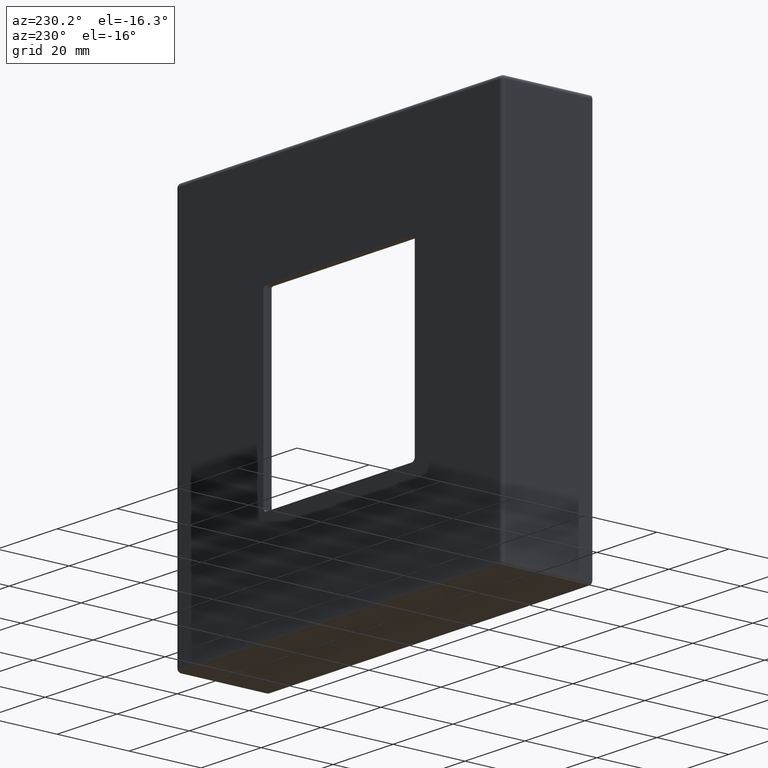
[diagram: clean part render]
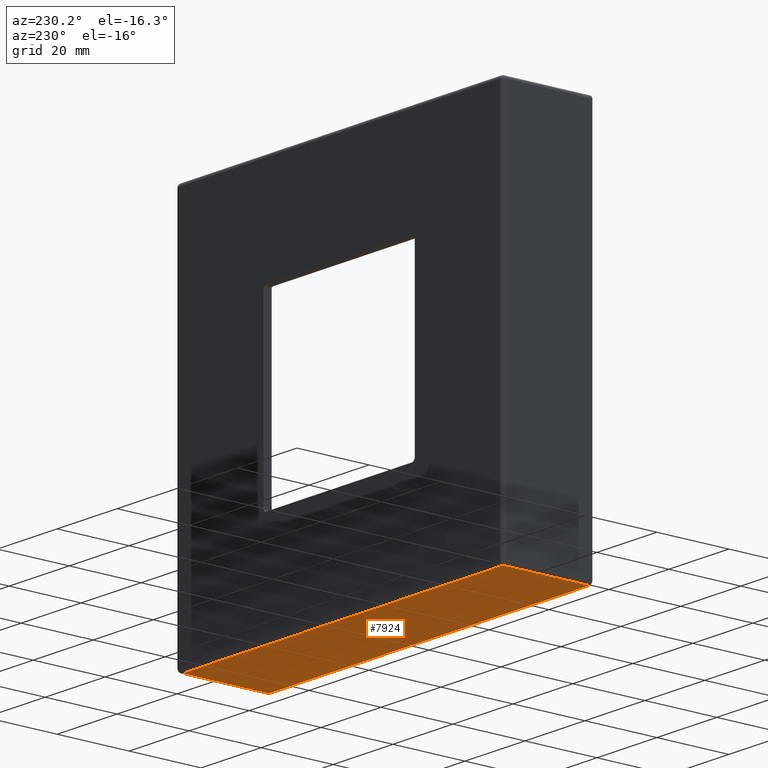
[diagram: same view with one face highlighted and labeled with its STEP entity id]
A machine part, auxiliary view. The second image highlights one B-rep face of the part: STEP entity #7924.
In plain terms, the highlighted planar face has unit normal (0, -0, 1).
Its self-contained STEP definition (entity closure, byte-faithful):
#1629 = VERTEX_POINT ( 'NONE', #2452 ) ;
#1792 = LINE ( 'NONE', #15757, #3469 ) ;
#2212 = ORIENTED_EDGE ( 'NONE', *, *, #3316, .T. ) ;
#2238 = VECTOR ( 'NONE', #11692, 1000.000000000000000 ) ;
#2452 = CARTESIAN_POINT ( 'NONE',  ( -53.50000000000000711, 0.000000000000000000, -54.50000000000000000 ) ) ;
#2500 = ORIENTED_EDGE ( 'NONE', *, *, #12842, .T. ) ;
#2550 = CARTESIAN_POINT ( 'NONE',  ( -54.50000000000000711, 25.00000000000000000, -54.50000000000000000 ) ) ;
#2664 = LINE ( 'NONE', #13098, #2238 ) ;
#2769 = LINE ( 'NONE', #13797, #8904 ) ;
#3316 = EDGE_CURVE ( 'NONE', #12879, #11619, #2769, .T. ) ;
#3469 = VECTOR ( 'NONE', #11776, 1000.000000000000000 ) ;
#4277 = DIRECTION ( 'NONE',  ( 0.000000000000000000, -1.000000000000000000, 0.000000000000000000 ) ) ;
#4454 = ORIENTED_EDGE ( 'NONE', *, *, #15306, .T. ) ;
#4714 = DIRECTION ( 'NONE',  ( 1.000000000000000000, -0.000000000000000000, -6.365957710006634050E-17 ) ) ;
#5281 = DIRECTION ( 'NONE',  ( 6.365957710006634050E-17, -0.000000000000000000, 1.000000000000000000 ) ) ;
#5450 = PLANE ( 'NONE',  #7866 ) ;
#5570 = LINE ( 'NONE', #15490, #13176 ) ;
#5798 = CARTESIAN_POINT ( 'NONE',  ( 53.49999999999997868, 0.000000000000000000, -54.50000000000000711 ) ) ;
#7866 = AXIS2_PLACEMENT_3D ( 'NONE', #2550, #5281, #12067 ) ;
#7924 = ADVANCED_FACE ( 'NONE', ( #10346 ), #5450, .F. ) ;
#7984 = CARTESIAN_POINT ( 'NONE',  ( 53.49999999999997868, 24.00000000000000000, -54.50000000000000711 ) ) ;
#8904 = VECTOR ( 'NONE', #4277, 1000.000000000000000 ) ;
#10113 = ORIENTED_EDGE ( 'NONE', *, *, #10956, .T. ) ;
#10346 = FACE_OUTER_BOUND ( 'NONE', #13548, .T. ) ;
#10956 = EDGE_CURVE ( 'NONE', #11619, #1629, #2664, .T. ) ;
#11619 = VERTEX_POINT ( 'NONE', #5798 ) ;
#11692 = DIRECTION ( 'NONE',  ( -1.000000000000000000, -0.000000000000000000, 6.365957710006634050E-17 ) ) ;
#11776 = DIRECTION ( 'NONE',  ( -0.000000000000000000, 1.000000000000000000, -0.000000000000000000 ) ) ;
#12067 = DIRECTION ( 'NONE',  ( 1.000000000000000000, 0.000000000000000000, -6.365957710006634050E-17 ) ) ;
#12751 = VERTEX_POINT ( 'NONE', #15703 ) ;
#12842 = EDGE_CURVE ( 'NONE', #1629, #12751, #1792, .T. ) ;
#12879 = VERTEX_POINT ( 'NONE', #7984 ) ;
#13098 = CARTESIAN_POINT ( 'NONE',  ( -54.50000000000000711, 0.000000000000000000, -54.50000000000000000 ) ) ;
#13176 = VECTOR ( 'NONE', #4714, 1000.000000000000000 ) ;
#13548 = EDGE_LOOP ( 'NONE', ( #4454, #2212, #10113, #2500 ) ) ;
#13797 = CARTESIAN_POINT ( 'NONE',  ( 53.49999999999997868, 25.00000000000000000, -54.50000000000000711 ) ) ;
#15306 = EDGE_CURVE ( 'NONE', #12751, #12879, #5570, .T. ) ;
#15490 = CARTESIAN_POINT ( 'NONE',  ( 54.49999999999998579, 24.00000000000000000, -54.50000000000000711 ) ) ;
#15703 = CARTESIAN_POINT ( 'NONE',  ( -53.50000000000000711, 24.00000000000000000, -54.50000000000000000 ) ) ;
#15757 = CARTESIAN_POINT ( 'NONE',  ( -53.50000000000000711, 25.00000000000000000, -54.50000000000000000 ) ) ;